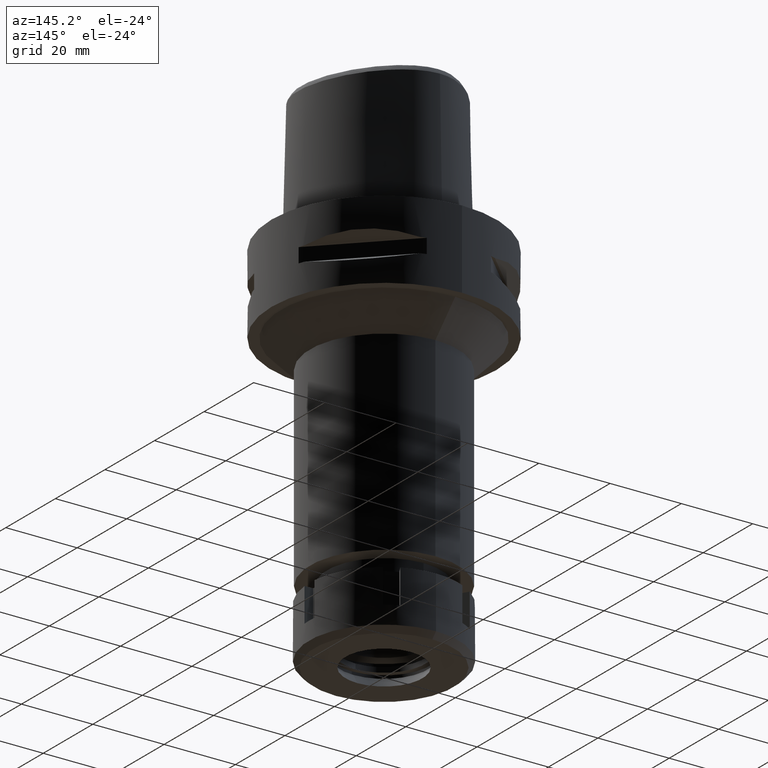
[diagram: clean part render]
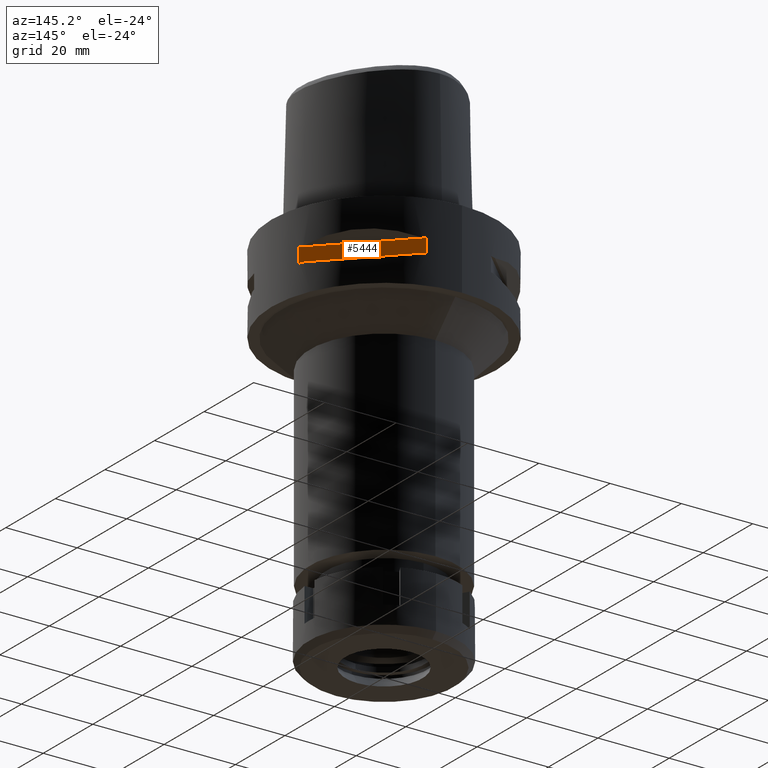
[diagram: same view with one face highlighted and labeled with its STEP entity id]
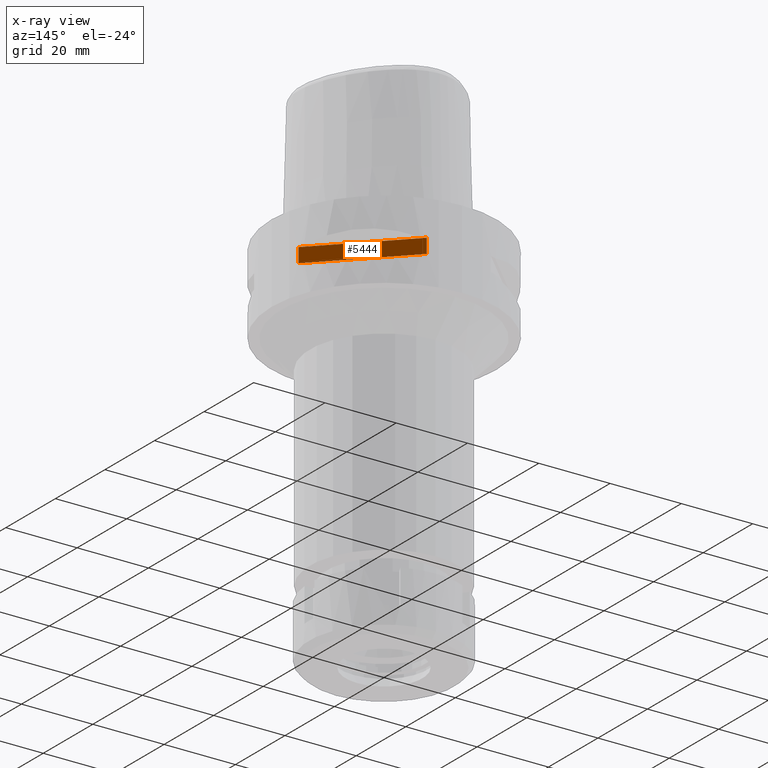
[diagram: x-ray of the same camera — body ghosted, the highlighted face saturated]
A machine part, auxiliary view. The second image highlights one B-rep face of the part: STEP entity #5444.
The next image is the same camera in x-ray: the body ghosted, the highlighted face saturated — about 0% of this face is hidden behind the body in this view.
In plain terms, the highlighted planar face has unit normal (-0.7071, -0.7071, 0).
Its self-contained STEP definition (entity closure, byte-faithful):
#67 = VERTEX_POINT ( 'NONE', #236 ) ;
#236 = CARTESIAN_POINT ( 'NONE',  ( 8.981198972019999616, 30.19251670572000279, -14.05000000000000071 ) ) ;
#269 = ORIENTED_EDGE ( 'NONE', *, *, #971, .F. ) ;
#391 = CARTESIAN_POINT ( 'NONE',  ( 30.19251670572000279, 8.981198972017999438, -14.05000000000000071 ) ) ;
#723 = EDGE_CURVE ( 'NONE', #4628, #67, #1038, .T. ) ;
#860 = DIRECTION ( 'NONE',  ( 0.0000000000000000000, 0.0000000000000000000, 1.000000000000000000 ) ) ;
#874 = EDGE_LOOP ( 'NONE', ( #269, #5298, #4728, #4950 ) ) ;
#962 = VECTOR ( 'NONE', #1922, 1000.000000000000114 ) ;
#971 = EDGE_CURVE ( 'NONE', #3171, #2824, #5105, .T. ) ;
#1038 = LINE ( 'NONE', #2347, #962 ) ;
#1106 = FACE_OUTER_BOUND ( 'NONE', #874, .T. ) ;
#1229 = EDGE_CURVE ( 'NONE', #67, #2824, #4748, .T. ) ;
#1378 = CARTESIAN_POINT ( 'NONE',  ( 8.981198972017999438, 30.19251670572000279, -14.05000000000000071 ) ) ;
#1418 = PLANE ( 'NONE',  #4313 ) ;
#1476 = DIRECTION ( 'NONE',  ( -0.7071067811865475727, 0.7071067811865475727, 0.0000000000000000000 ) ) ;
#1602 = VECTOR ( 'NONE', #860, 1000.000000000000000 ) ;
#1922 = DIRECTION ( 'NONE',  ( -0.7071067811865474617, 0.7071067811865474617, 0.0000000000000000000 ) ) ;
#1928 = CARTESIAN_POINT ( 'NONE',  ( 5.444722215136000187, 33.72899346260000186, -9.950000000000001066 ) ) ;
#2066 = CARTESIAN_POINT ( 'NONE',  ( 30.19251670572000279, 8.981198972017999438, -9.950000000000001066 ) ) ;
#2347 = CARTESIAN_POINT ( 'NONE',  ( 30.19251670572000279, 8.981198972017999438, -14.05000000000000071 ) ) ;
#2824 = VERTEX_POINT ( 'NONE', #4801 ) ;
#3171 = VERTEX_POINT ( 'NONE', #3635 ) ;
#3360 = DIRECTION ( 'NONE',  ( -0.7071067811865474617, 0.7071067811865474617, 0.0000000000000000000 ) ) ;
#3566 = LINE ( 'NONE', #4501, #4824 ) ;
#3598 = DIRECTION ( 'NONE',  ( 0.0000000000000000000, 0.0000000000000000000, -1.000000000000000000 ) ) ;
#3635 = CARTESIAN_POINT ( 'NONE',  ( 30.19251670572000279, 8.981198972019999616, -9.950000000000001066 ) ) ;
#3924 = EDGE_CURVE ( 'NONE', #3171, #4628, #3566, .T. ) ;
#4313 = AXIS2_PLACEMENT_3D ( 'NONE', #1928, #5333, #1476 ) ;
#4501 = CARTESIAN_POINT ( 'NONE',  ( 30.19251670572000279, 8.981198972017999438, -9.950000000000001066 ) ) ;
#4628 = VERTEX_POINT ( 'NONE', #391 ) ;
#4728 = ORIENTED_EDGE ( 'NONE', *, *, #723, .T. ) ;
#4748 = LINE ( 'NONE', #1378, #1602 ) ;
#4801 = CARTESIAN_POINT ( 'NONE',  ( 8.981198972017999438, 30.19251670572000279, -9.950000000000001066 ) ) ;
#4824 = VECTOR ( 'NONE', #3598, 1000.000000000000000 ) ;
#4950 = ORIENTED_EDGE ( 'NONE', *, *, #1229, .T. ) ;
#5105 = LINE ( 'NONE', #2066, #5441 ) ;
#5298 = ORIENTED_EDGE ( 'NONE', *, *, #3924, .T. ) ;
#5333 = DIRECTION ( 'NONE',  ( -0.7071067811865475727, -0.7071067811865475727, 0.0000000000000000000 ) ) ;
#5441 = VECTOR ( 'NONE', #3360, 1000.000000000000114 ) ;
#5444 = ADVANCED_FACE ( 'NONE', ( #1106 ), #1418, .F. ) ;